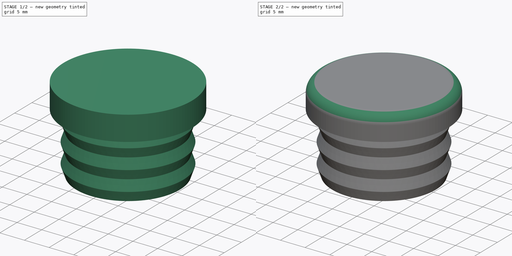
[diagram: build sequence overview — one tinted view per stage of 2, left to right]
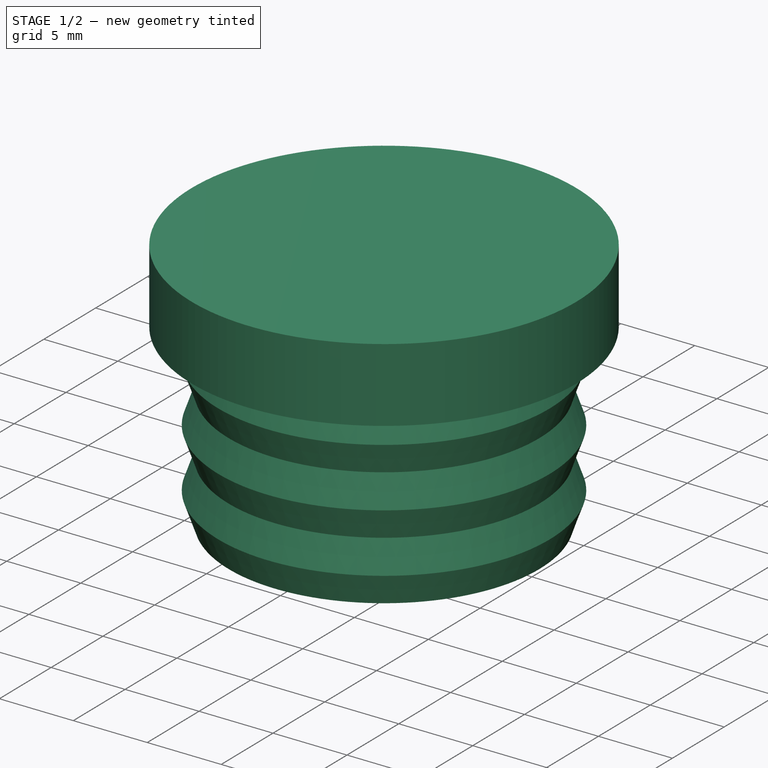
[diagram: stage 1 of 2 — iso view after this stage's code; geometry added in this stage tinted green]
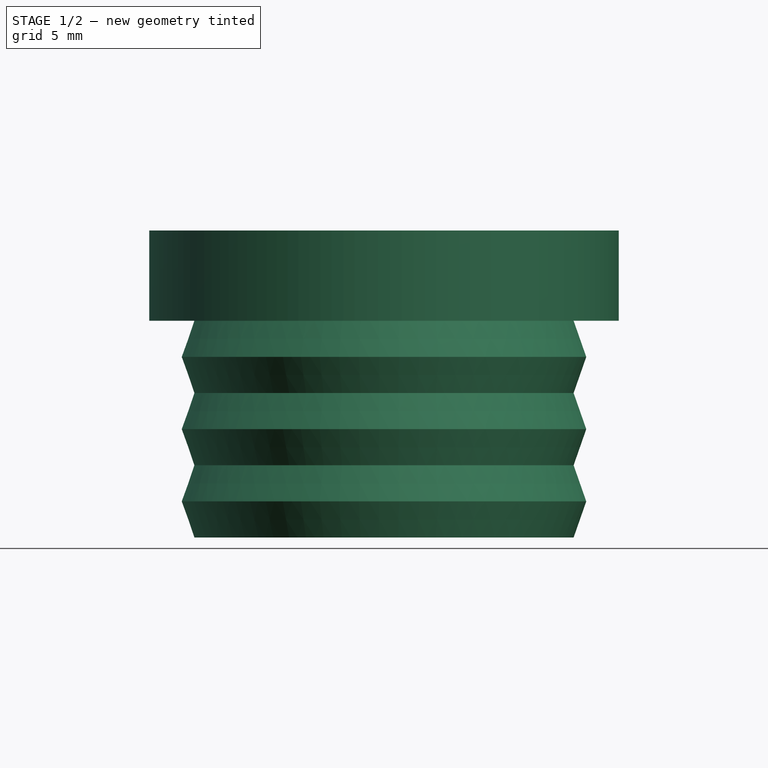
[diagram: stage 1 of 2 — front view after this stage's code; geometry added in this stage tinted green]
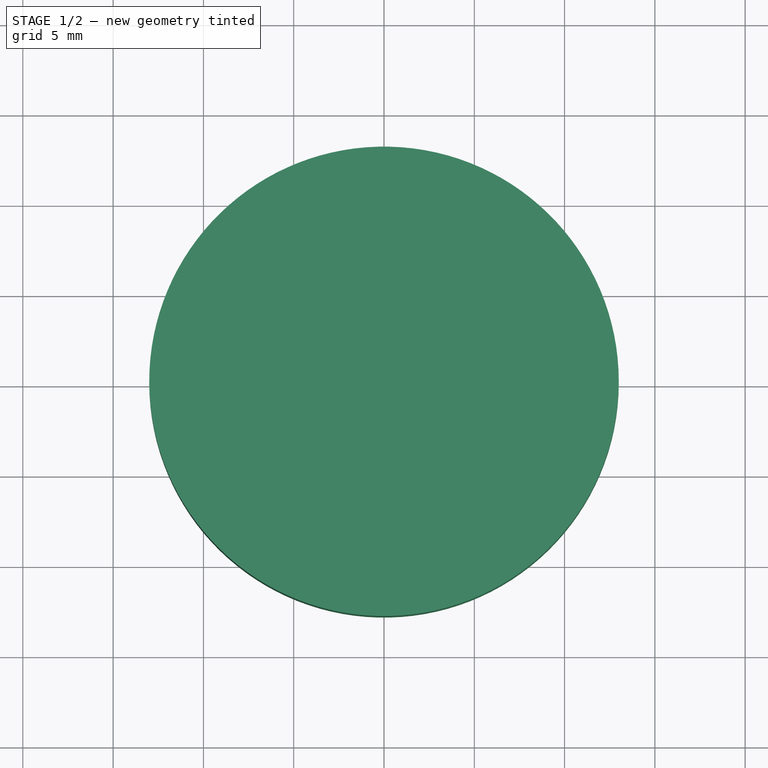
[diagram: stage 1 of 2 — top view after this stage's code; geometry added in this stage tinted green]
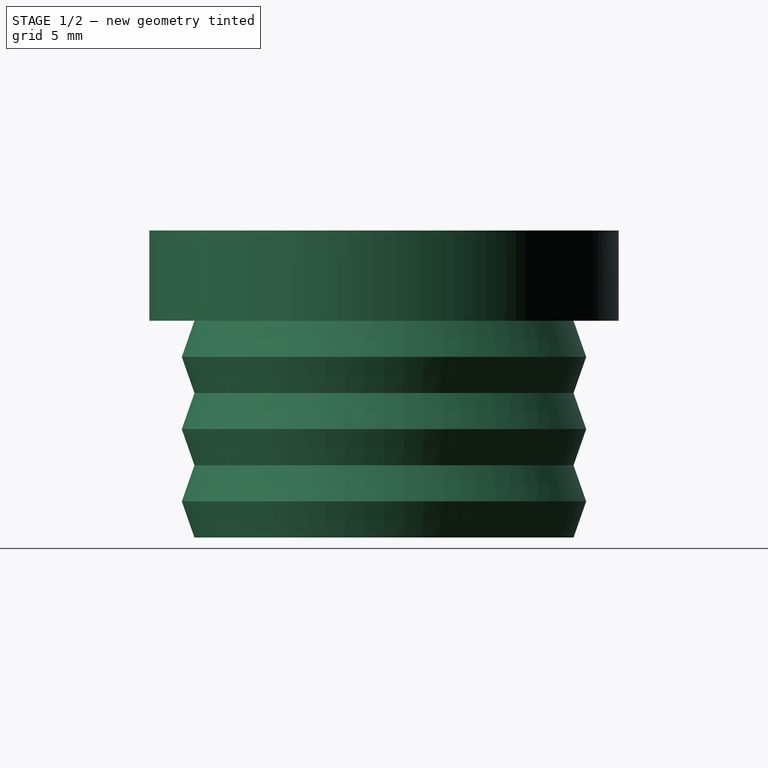
[diagram: stage 1 of 2 — right view after this stage's code; geometry added in this stage tinted green]
FCSTD DOCUMENT  (FreeCAD 0.16R6712 (Git))
Label: Bouchon tube 25mm
License: All rights reserved
LicenseURL: http://en.wikipedia.org/wiki/All_rights_reserved
objects: Sketcher::SketchObject×1, PartDesign::Revolution×1, PartDesign::Fillet×1
note: 4 computed .brp shape members not serialized (recipe doc carries the construction recipe); baked Part::Feature solids carry a one-line shape summary decoded from their .brp

FEATURE [Sketcher::SketchObject] Sketch
  Placement = pos=(0,0,0) rot=(1,0,0;1.5708rad)
  sketch-geometry (16):
    g0: LineSegment StartX=0 StartY=5 StartZ=0 EndX=13 EndY=5 EndZ=0
    g1: LineSegment StartX=13 StartY=5 StartZ=0 EndX=13 EndY=0 EndZ=0
    g2: LineSegment StartX=13 StartY=0 StartZ=0 EndX=10.5 EndY=0 EndZ=0
    g3: LineSegment StartX=10.5 StartY=0 StartZ=0 EndX=11.2 EndY=-2 EndZ=0
    g4: LineSegment StartX=11.2 StartY=-2 StartZ=0 EndX=10.5 EndY=-4 EndZ=0
    g5: LineSegment StartX=10.5 StartY=-4 StartZ=0 EndX=11.2 EndY=-6 EndZ=0
    g6: LineSegment StartX=11.2 StartY=-6 StartZ=0 EndX=10.5 EndY=-8 EndZ=0
    g7: LineSegment StartX=10.5 StartY=-8 StartZ=0 EndX=11.2 EndY=-10 EndZ=0
    g8: LineSegment StartX=11.2 StartY=-10 StartZ=0 EndX=10.5 EndY=-12 EndZ=0
    g9: LineSegment StartX=10.5 StartY=-12 StartZ=0 EndX=9 EndY=-12 EndZ=0
    g10: LineSegment StartX=9 StartY=-12 StartZ=0 EndX=9 EndY=0 EndZ=0
    g11: LineSegment StartX=9 StartY=0 StartZ=0 EndX=0 EndY=0 EndZ=0
    g12: LineSegment StartX=0 StartY=0 StartZ=0 EndX=0 EndY=5 EndZ=0
    g13: LineSegment [constr] StartX=9 StartY=0 StartZ=0 EndX=10.5 EndY=0 EndZ=0
    g14: LineSegment [constr] StartX=10.5 StartY=0 StartZ=0 EndX=10.5 EndY=-12 EndZ=0
    g15: LineSegment [constr] StartX=11.2 StartY=-2 StartZ=0 EndX=11.2 EndY=-10 EndZ=0
  constraints (45):
    c: PointOnObject(g0,g-2)
    c: Horizontal(g0)
    c: Coincident(g0,g1)
    c: Vertical(g1)
    c: Coincident(g1,g2)
    c: Coincident(g3,g4)
    c: Coincident(g4,g5)
    c: Coincident(g5,g6)
    c: Coincident(g6,g7)
    c: Coincident(g7,g8)
    c: Coincident(g8,g9)
    c: Horizontal(g9)
    c: Coincident(g9,g10)
    c: Vertical(g10)
    c: Coincident(g10,g11)
    c: Horizontal(g11)
    c: Coincident(g11,g12)
    c: Coincident(g12,g0)
    c: Vertical(g12)
    c: Horizontal(g2)
    c: DistanceX(g0,g0) = 13
    c: DistanceX(g2,g1) = 2.5
    c: DistanceX(g9,g8) = 1.5
    c: Coincident(g13,g10)
    c: Coincident(g13,g2)
    c: Horizontal(g13)
    c: DistanceY(g11,g0) = 5
    c: Vertical(g14)
    c: Coincident(g14,g8)
    c: PointOnObject(g6,g14)
    c: PointOnObject(g4,g14)
    c: DistanceY(g9,g10) = 12
    c: Coincident(g15,g3)
    c: PointOnObject(g5,g15)
    c: Coincident(g15,g7)
    c: Vertical(g15)
    c: DistanceX(g11,g7) = 11.2
    c: Coincident(g3,g2)
    c: Coincident(g14,g2)
    c: DistanceY(g3,g2) = 2
    c: DistanceY(g4,g3) = 2
    c: DistanceY(g5,g4) = 2
    c: DistanceY(g6,g5) = 2
    c: DistanceY(g7,g6) = 2
    c: Coincident(g11,g-1)
FEATURE [PartDesign::Revolution] Revolution
  Angle = 360
  Axis = (0,0,1)
  Base = (0,0,0)
  Placement = pos=(0,0,0) rot=(1,0,0;1.5708rad)
  ReferenceAxis = -> Sketch [V_Axis]
  Reversed = true
  Sketch = -> Sketch
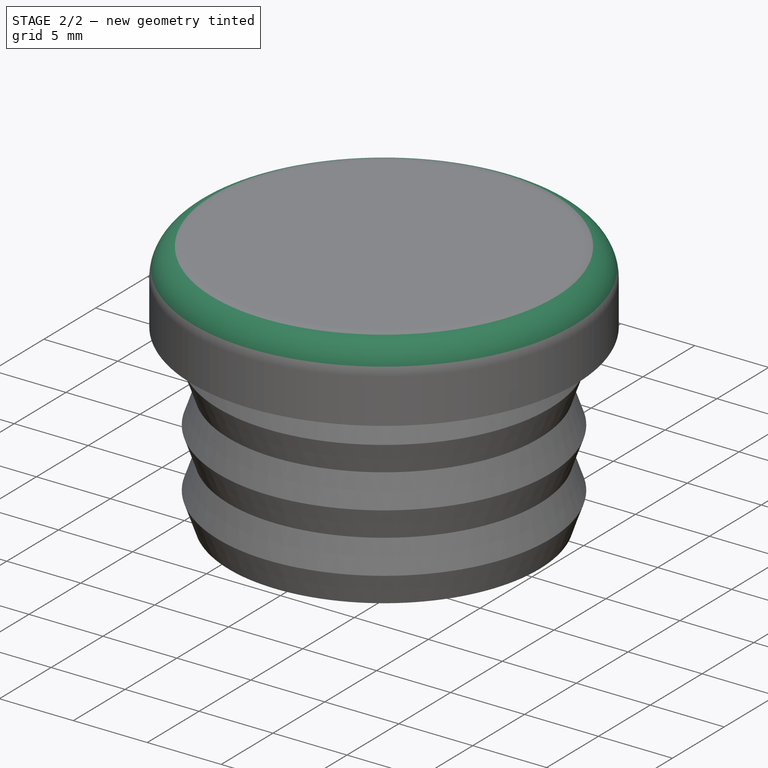
[diagram: stage 2 of 2 — iso view after this stage's code; geometry added in this stage tinted green]
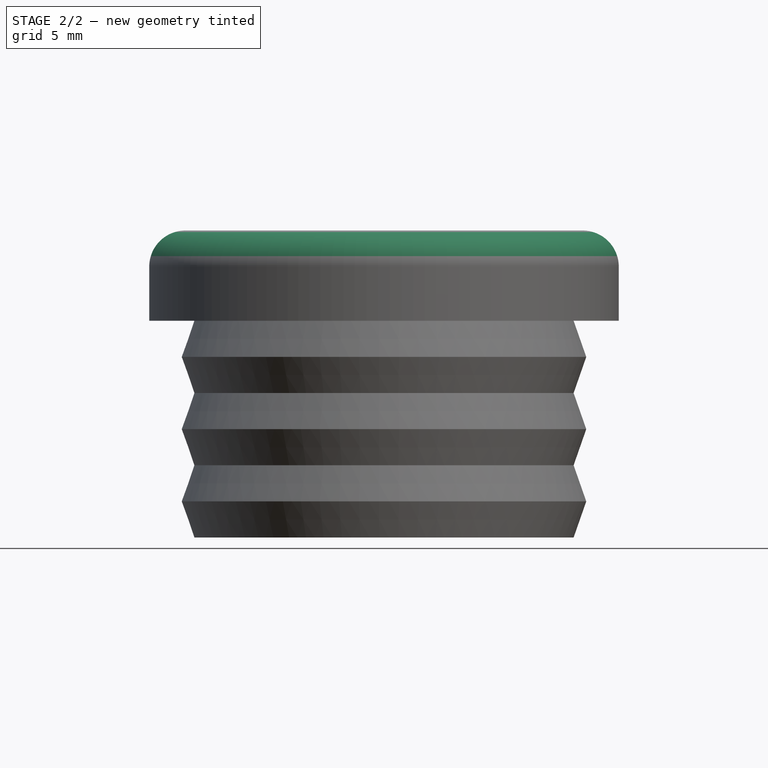
[diagram: stage 2 of 2 — front view after this stage's code; geometry added in this stage tinted green]
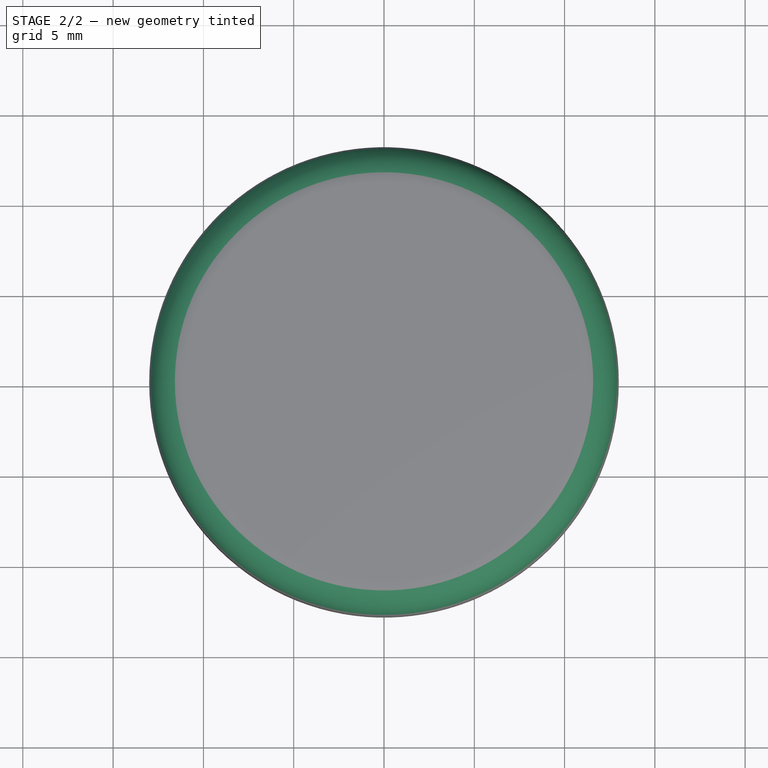
[diagram: stage 2 of 2 — top view after this stage's code; geometry added in this stage tinted green]
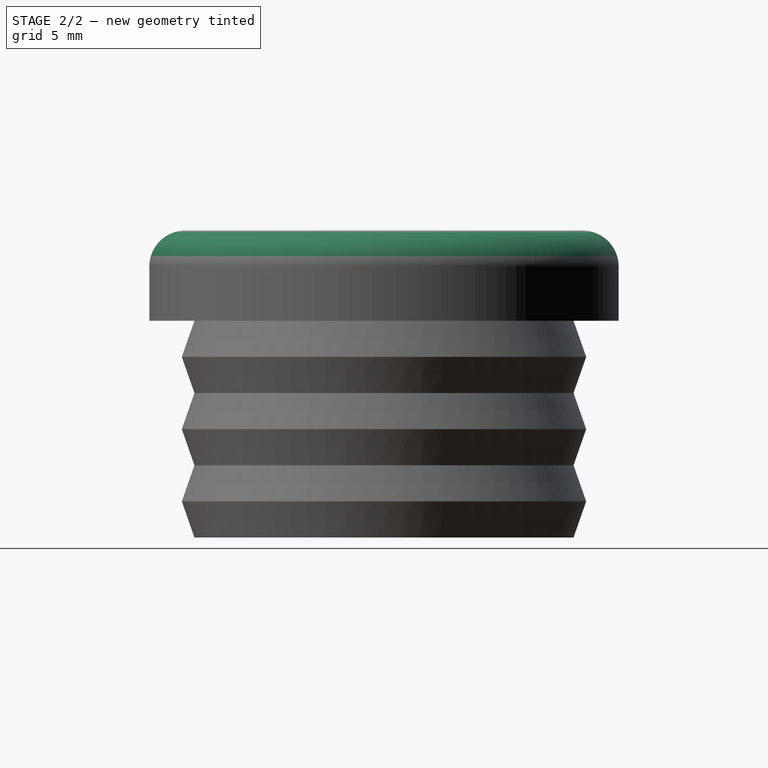
[diagram: stage 2 of 2 — right view after this stage's code; geometry added in this stage tinted green]
FEATURE [PartDesign::Fillet] Fillet
  Base = -> Revolution [Edge1]
  Placement = pos=(0,0,0) rot=(1,0,0;1.5708rad)
  Radius = 2
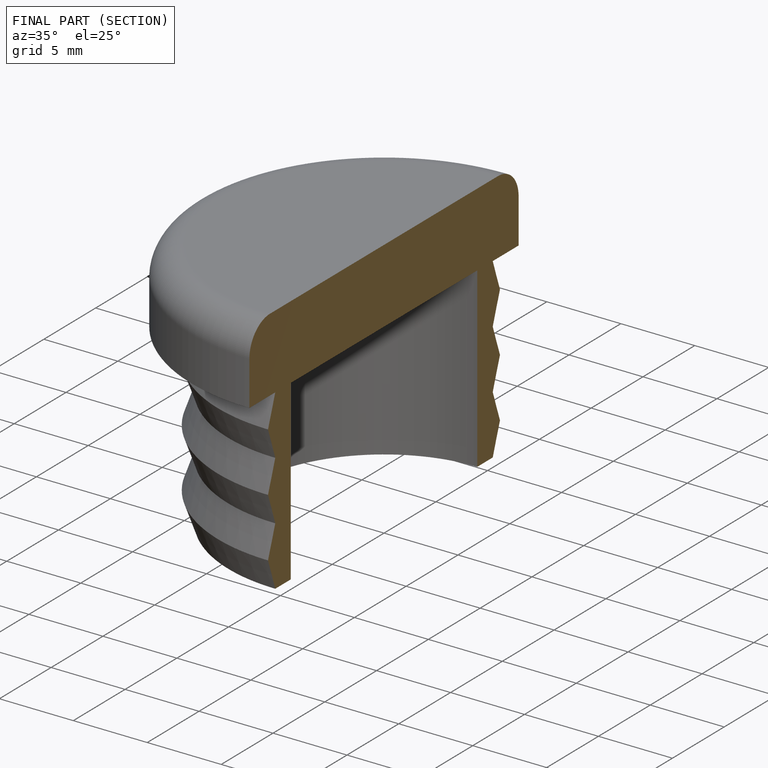
[diagram: finished part — half-section view (interior)]
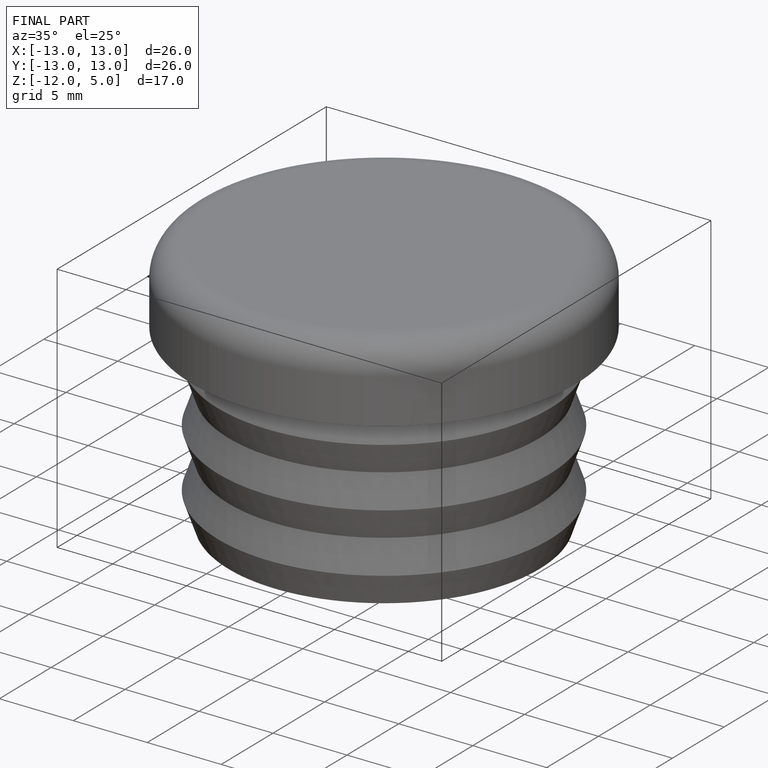
[diagram: finished part — iso view with bounding-box wireframe]
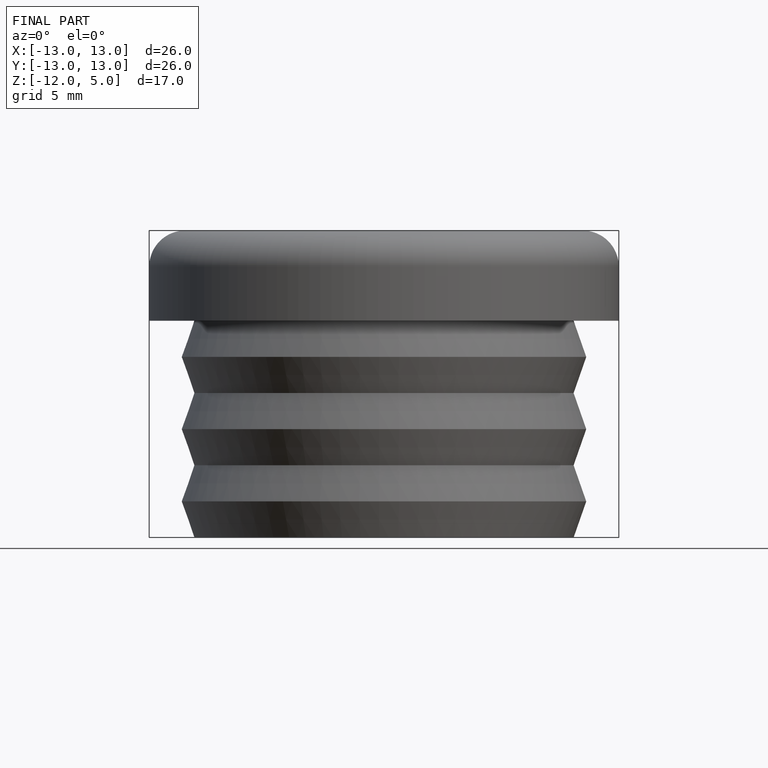
[diagram: finished part — front view with bounding-box wireframe]
